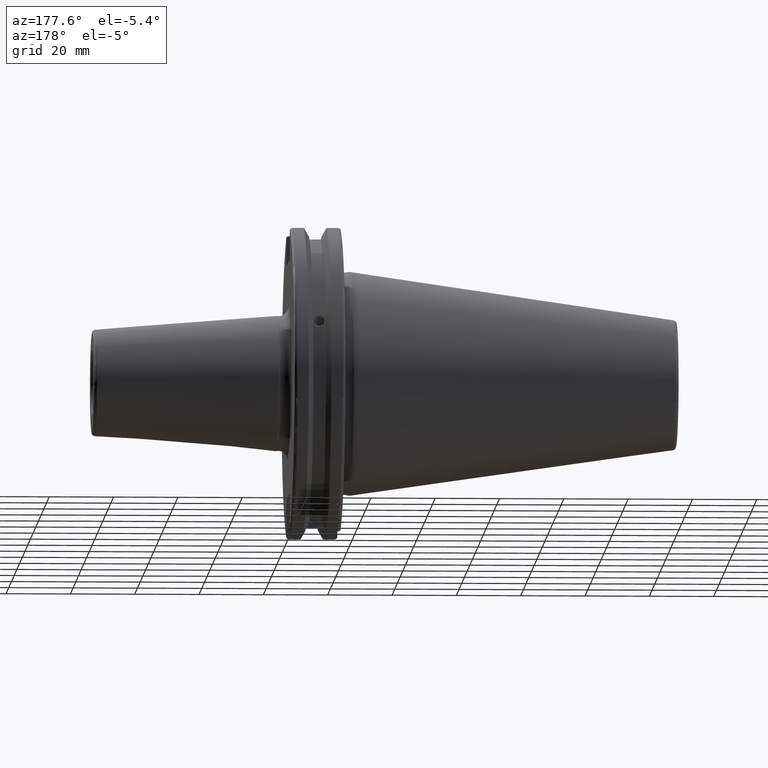
[diagram: clean part render]
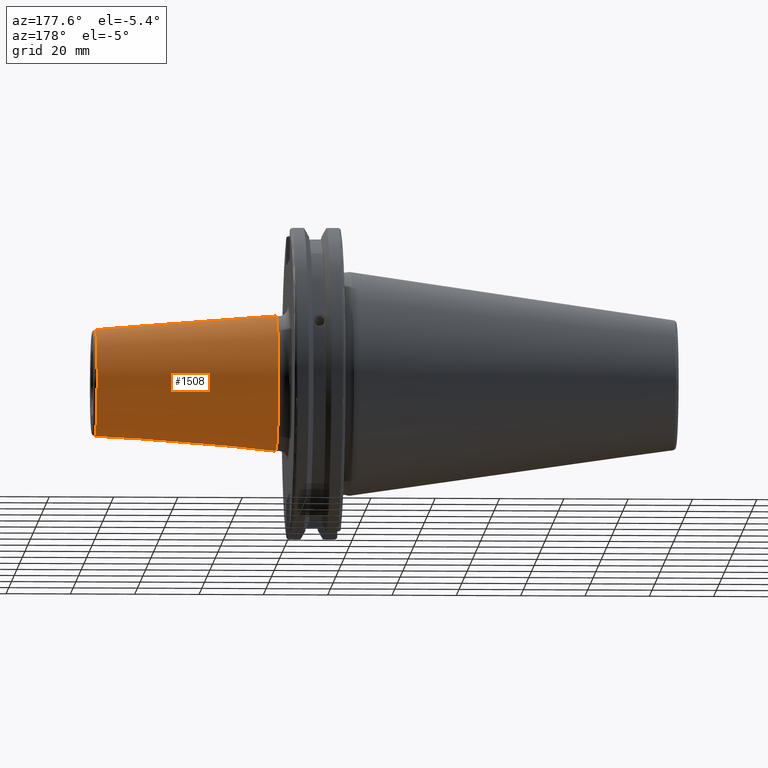
[diagram: same view with one face highlighted and labeled with its STEP entity id]
A machine part, auxiliary view. The second image highlights one B-rep face of the part: STEP entity #1508.
In plain terms, the highlighted conical surface has half-angle 4.5 deg.
Its self-contained STEP definition (entity closure, byte-faithful):
#69=CONICAL_SURFACE('',#1641,18.75,0.0785398163397452);
#163=FACE_OUTER_BOUND('',#257,.T.);
#257=EDGE_LOOP('',(#1060,#1061,#1062,#1063,#1064));
#360=CIRCLE('',#1624,21.);
#370=CIRCLE('',#1639,16.5725268420749);
#371=CIRCLE('',#1640,16.5725268420749);
#446=LINE('',#2296,#540);
#540=VECTOR('',#1862,18.75);
#631=VERTEX_POINT('',#2246);
#649=VERTEX_POINT('',#2290);
#650=VERTEX_POINT('',#2292);
#788=EDGE_CURVE('',#631,#631,#360,.T.);
#810=EDGE_CURVE('',#649,#650,#370,.T.);
#811=EDGE_CURVE('',#650,#649,#371,.T.);
#812=EDGE_CURVE('',#650,#631,#446,.T.);
#1060=ORIENTED_EDGE('',*,*,#811,.F.);
#1061=ORIENTED_EDGE('',*,*,#812,.T.);
#1062=ORIENTED_EDGE('',*,*,#788,.T.);
#1063=ORIENTED_EDGE('',*,*,#812,.F.);
#1064=ORIENTED_EDGE('',*,*,#810,.F.);
#1508=ADVANCED_FACE('',(#163),#69,.T.);
#1624=AXIS2_PLACEMENT_3D('',#2247,#1814,#1815);
#1639=AXIS2_PLACEMENT_3D('',#2293,#1856,#1857);
#1640=AXIS2_PLACEMENT_3D('',#2294,#1858,#1859);
#1641=AXIS2_PLACEMENT_3D('',#2295,#1860,#1861);
#1814=DIRECTION('center_axis',(1.,0.,0.));
#1815=DIRECTION('ref_axis',(0.,0.,-1.));
#1856=DIRECTION('center_axis',(1.,0.,0.));
#1857=DIRECTION('ref_axis',(0.,-1.,3.06161699786838E-17));
#1858=DIRECTION('center_axis',(1.,0.,0.));
#1859=DIRECTION('ref_axis',(0.,-1.,3.06161699786838E-17));
#1860=DIRECTION('center_axis',(-1.,0.,0.));
#1861=DIRECTION('ref_axis',(0.,1.,0.));
#1862=DIRECTION('',(-0.996917333733128,-0.0784590957278453,-9.60846804471016E-18));
#2246=CARTESIAN_POINT('',(22.8220786872141,-21.,-2.57175827820944E-15));
#2247=CARTESIAN_POINT('Origin',(22.8220786872141,0.,0.));
#2290=CARTESIAN_POINT('',(79.0784590957279,-2.02954919509306E-15,16.5725268420749));
#2292=CARTESIAN_POINT('',(79.0784590957279,-16.5725268420749,-2.02954919509306E-15));
#2293=CARTESIAN_POINT('Origin',(79.0784590957279,0.,-2.53693649386633E-15));
#2294=CARTESIAN_POINT('Origin',(79.0784590957279,0.,-2.53693649386633E-15));
#2295=CARTESIAN_POINT('Origin',(51.4110393436071,0.,0.));
#2296=CARTESIAN_POINT('',(51.4110393436071,-18.75,-2.29621274840129E-15));